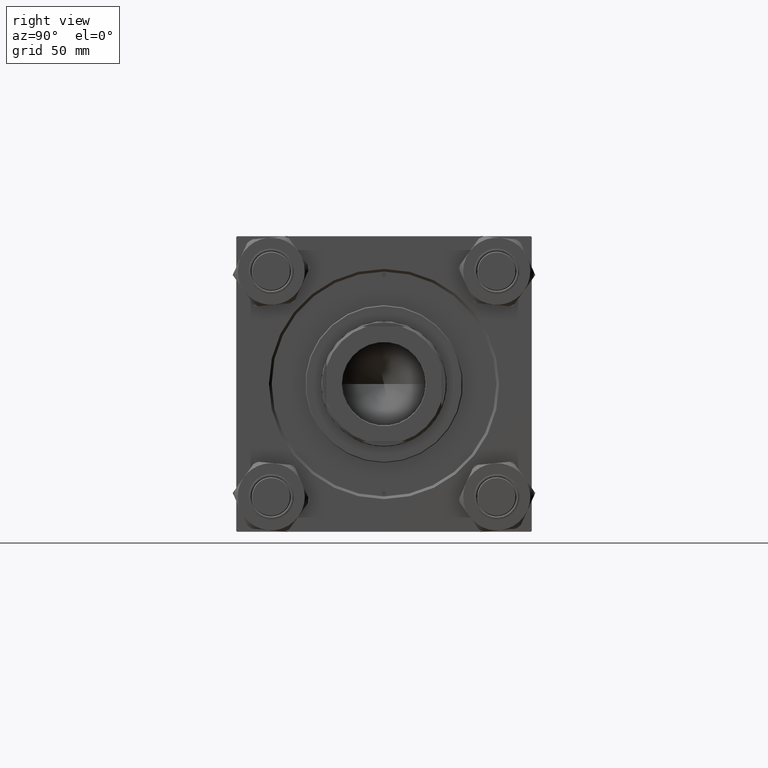
[diagram: clean part render]
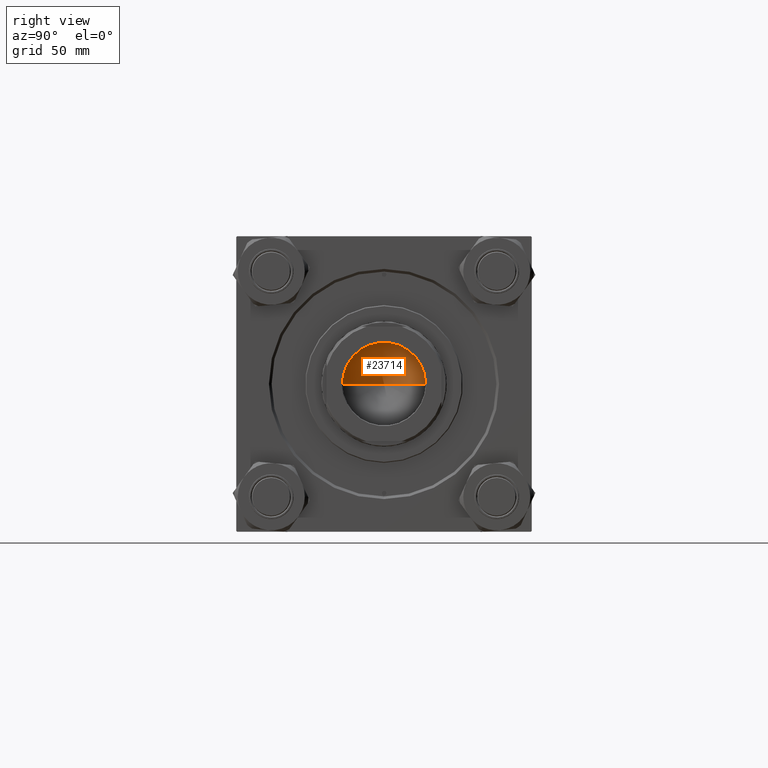
[diagram: same view with one face highlighted and labeled with its STEP entity id]
A machine part, right view. The second image highlights one B-rep face of the part: STEP entity #23714.
In plain terms, the highlighted conical surface has half-angle 59 deg.
Its self-contained STEP definition (entity closure, byte-faithful):
#73 = LINE ( 'NONE', #12091, #47001 ) ;
#622 = DIRECTION ( 'NONE',  ( 1.000000000000000000, 0.000000000000000000, 0.000000000000000000 ) ) ;
#1215 = AXIS2_PLACEMENT_3D ( 'NONE', #4625, #20213, #9233 ) ;
#1669 = EDGE_CURVE ( 'NONE', #4540, #10323, #19724, .T. ) ;
#2832 = CIRCLE ( 'NONE', #1215, 23.24999999999998579 ) ;
#4540 = VERTEX_POINT ( 'NONE', #47049 ) ;
#4625 = CARTESIAN_POINT ( 'NONE',  ( 0.000000000000000000, 0.000000000000000000, 128.9999999999999716 ) ) ;
#5041 = ORIENTED_EDGE ( 'NONE', *, *, #29584, .T. ) ;
#6121 = AXIS2_PLACEMENT_3D ( 'NONE', #8312, #35594, #622 ) ;
#8312 = CARTESIAN_POINT ( 'NONE',  ( 0.000000000000000000, 0.000000000000000000, 128.9999999999999716 ) ) ;
#9233 = DIRECTION ( 'NONE',  ( 1.000000000000000000, 0.000000000000000000, 0.000000000000000000 ) ) ;
#10242 = EDGE_LOOP ( 'NONE', ( #36213, #5041, #39541 ) ) ;
#10323 = VERTEX_POINT ( 'NONE', #49681 ) ;
#12091 = CARTESIAN_POINT ( 'NONE',  ( -23.24999999999998579, 2.847303808017594561E-15, 128.9999999999999716 ) ) ;
#13851 = VECTOR ( 'NONE', #50077, 1000.000000000000000 ) ;
#18970 = CARTESIAN_POINT ( 'NONE',  ( 23.24999999999998579, 0.000000000000000000, 128.9999999999999716 ) ) ;
#19724 = LINE ( 'NONE', #18970, #13851 ) ;
#20213 = DIRECTION ( 'NONE',  ( -0.000000000000000000, -0.000000000000000000, 1.000000000000000000 ) ) ;
#21084 = EDGE_CURVE ( 'NONE', #28142, #10323, #2832, .T. ) ;
#23714 = ADVANCED_FACE ( 'NONE', ( #27681 ), #43605, .F. ) ;
#27681 = FACE_OUTER_BOUND ( 'NONE', #10242, .T. ) ;
#27898 = DIRECTION ( 'NONE',  ( -0.8571673007021117785, 1.049727191138617956E-16, 0.5150380749100550437 ) ) ;
#28142 = VERTEX_POINT ( 'NONE', #28339 ) ;
#28339 = CARTESIAN_POINT ( 'NONE',  ( -23.24999999999998579, 2.847303808017594561E-15, 128.9999999999999716 ) ) ;
#29584 = EDGE_CURVE ( 'NONE', #4540, #28142, #73, .T. ) ;
#35594 = DIRECTION ( 'NONE',  ( -0.000000000000000000, -0.000000000000000000, 1.000000000000000000 ) ) ;
#36213 = ORIENTED_EDGE ( 'NONE', *, *, #1669, .F. ) ;
#39541 = ORIENTED_EDGE ( 'NONE', *, *, #21084, .T. ) ;
#43605 = CONICAL_SURFACE ( 'NONE', #6121, 23.24999999999998579, 1.029744258676653423 ) ;
#47001 = VECTOR ( 'NONE', #27898, 1000.000000000000000 ) ;
#47049 = CARTESIAN_POINT ( 'NONE',  ( -1.584115414415908206E-14, 0.000000000000000000, 115.0299906076091787 ) ) ;
#49681 = CARTESIAN_POINT ( 'NONE',  ( 23.24999999999998579, 0.000000000000000000, 128.9999999999999716 ) ) ;
#50077 = DIRECTION ( 'NONE',  ( 0.8571673007021117785, 0.000000000000000000, 0.5150380749100550437 ) ) ;